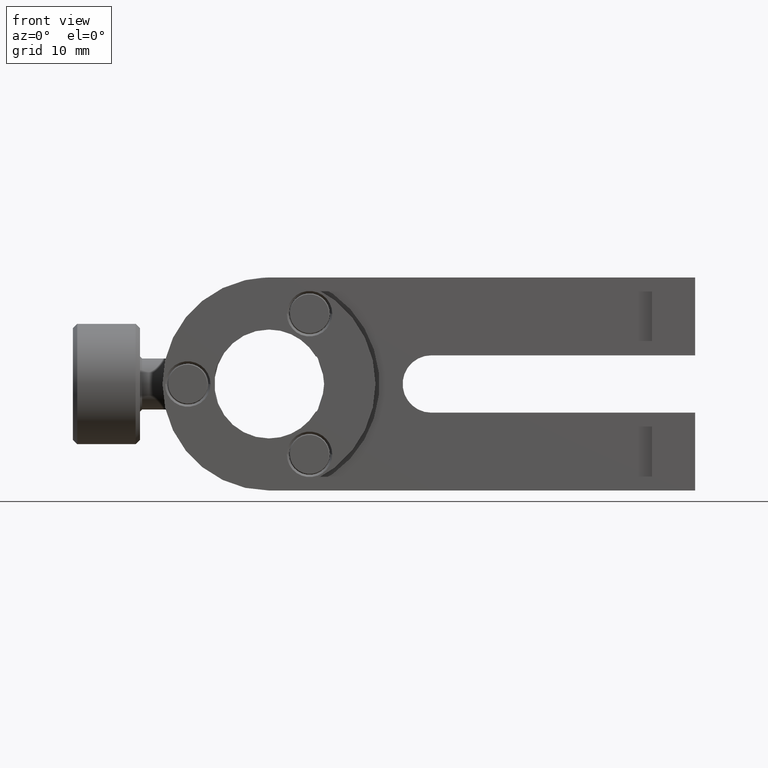
[diagram: clean part render]
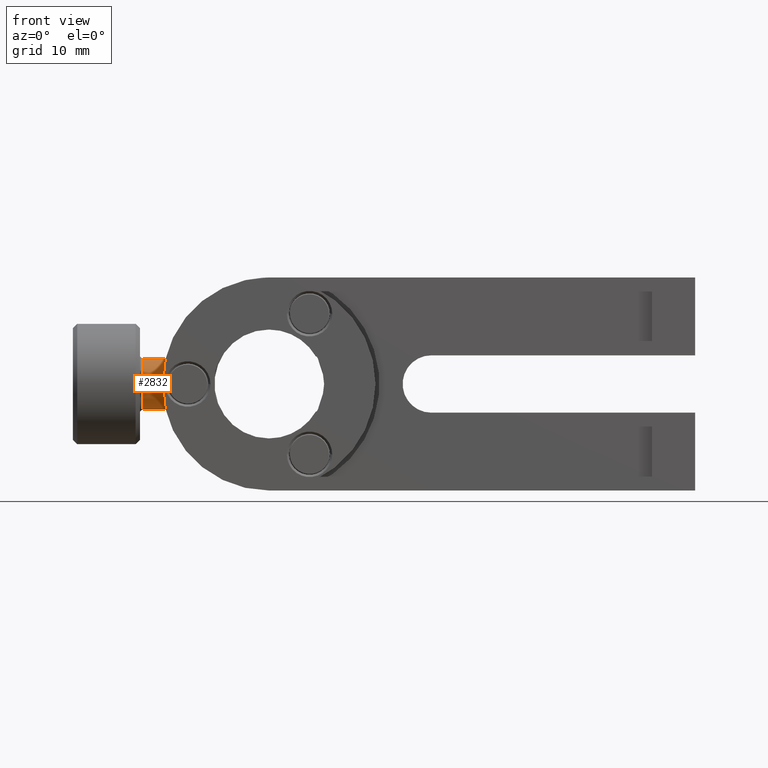
[diagram: same view with one face highlighted and labeled with its STEP entity id]
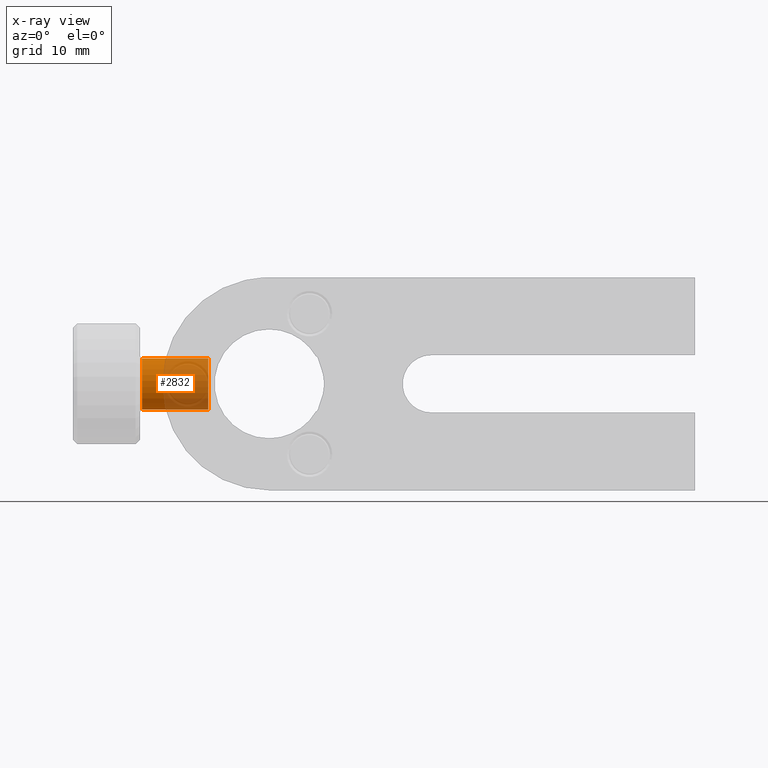
[diagram: x-ray of the same camera — body ghosted, the highlighted face saturated]
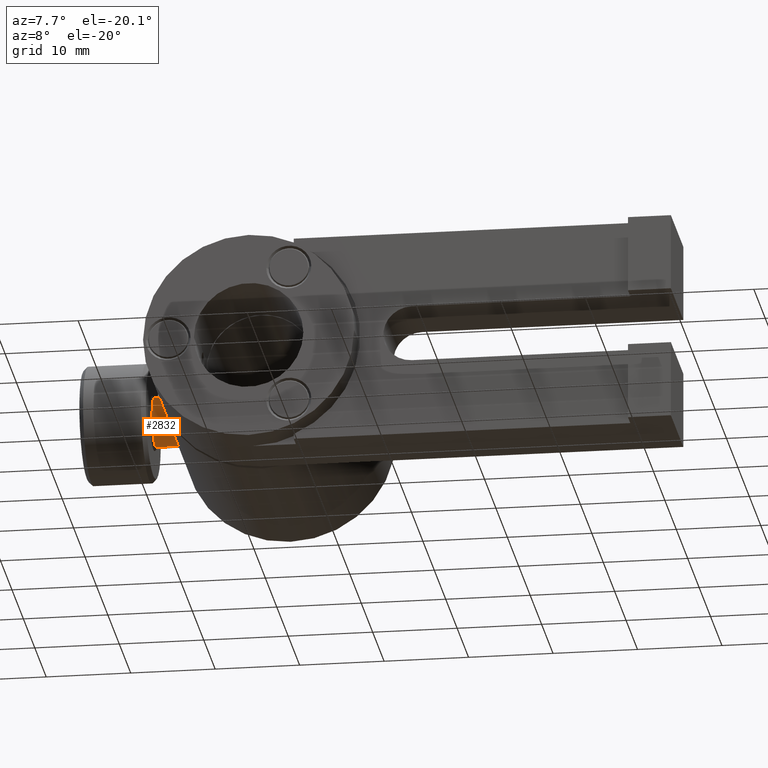
[diagram: same view with one face highlighted and labeled with its STEP entity id]
A machine part, front view. The second image highlights one B-rep face of the part: STEP entity #2832.
The next image is the same camera in x-ray: the body ghosted, the highlighted face saturated — about 67% of this face is hidden behind the body in this view.
A second angle (auxiliary view) of the same face is appended — the face is thin or edge-on in the first view.
In plain terms, the highlighted cylindrical surface (edge-blend (fillet) strip) has radius 2.9952 mm, axis along (-1, -0, -0).
Its self-contained STEP definition (entity closure, byte-faithful):
#126 = VECTOR ( 'NONE', #141, 1000.000000000000000 ) ;
#141 = DIRECTION ( 'NONE',  ( -1.000000000000000000, -0.0000000000000000000, -0.0000000000000000000 ) ) ;
#147 = AXIS2_PLACEMENT_3D ( 'NONE', #532, #545, #1911 ) ;
#244 = EDGE_CURVE ( 'NONE', #1350, #3098, #892, .T. ) ;
#372 = CARTESIAN_POINT ( 'NONE',  ( -10.74862634088826000, 23.30447020906446900, 2.995201897910377400 ) ) ;
#532 = CARTESIAN_POINT ( 'NONE',  ( -10.74862634088826000, 23.30447020906446900, 0.0000000000000000000 ) ) ;
#545 = DIRECTION ( 'NONE',  ( -1.000000000000000000, -0.0000000000000000000, -0.0000000000000000000 ) ) ;
#578 = ORIENTED_EDGE ( 'NONE', *, *, #1901, .F. ) ;
#607 = DIRECTION ( 'NONE',  ( -1.000000000000000000, -0.0000000000000000000, -0.0000000000000000000 ) ) ;
#677 = CARTESIAN_POINT ( 'NONE',  ( -22.21612422020027800, 23.30447020906446900, 2.995201897910377400 ) ) ;
#892 = CIRCLE ( 'NONE', #2960, 2.995201897910377400 ) ;
#938 = VERTEX_POINT ( 'NONE', #3562 ) ;
#1116 = DIRECTION ( 'NONE',  ( -1.000000000000000000, -0.0000000000000000000, -0.0000000000000000000 ) ) ;
#1124 = CARTESIAN_POINT ( 'NONE',  ( -22.21612422020027800, 23.30447020906446900, -2.995201897910377400 ) ) ;
#1224 = AXIS2_PLACEMENT_3D ( 'NONE', #3110, #1116, #2241 ) ;
#1350 = VERTEX_POINT ( 'NONE', #3418 ) ;
#1754 = ORIENTED_EDGE ( 'NONE', *, *, #244, .T. ) ;
#1820 = CARTESIAN_POINT ( 'NONE',  ( -3.001626340888241500, 23.30447020906446900, 0.0000000000000000000 ) ) ;
#1821 = ORIENTED_EDGE ( 'NONE', *, *, #3417, .T. ) ;
#1842 = FACE_OUTER_BOUND ( 'NONE', #3074, .T. ) ;
#1901 = EDGE_CURVE ( 'NONE', #938, #3503, #3195, .T. ) ;
#1911 = DIRECTION ( 'NONE',  ( 0.0000000000000000000, 0.0000000000000000000, 1.000000000000000000 ) ) ;
#1943 = LINE ( 'NONE', #1124, #3454 ) ;
#2114 = DIRECTION ( 'NONE',  ( -1.000000000000000000, -0.0000000000000000000, -0.0000000000000000000 ) ) ;
#2241 = DIRECTION ( 'NONE',  ( 0.0000000000000000000, 0.0000000000000000000, 1.000000000000000000 ) ) ;
#2378 = LINE ( 'NONE', #677, #126 ) ;
#2408 = DIRECTION ( 'NONE',  ( 0.0000000000000000000, 0.0000000000000000000, 1.000000000000000000 ) ) ;
#2432 = EDGE_CURVE ( 'NONE', #1350, #938, #1943, .T. ) ;
#2832 = ADVANCED_FACE ( 'NONE', ( #1842 ), #3589, .T. ) ;
#2960 = AXIS2_PLACEMENT_3D ( 'NONE', #1820, #2114, #2408 ) ;
#3074 = EDGE_LOOP ( 'NONE', ( #3246, #1754, #1821, #578 ) ) ;
#3098 = VERTEX_POINT ( 'NONE', #3169 ) ;
#3110 = CARTESIAN_POINT ( 'NONE',  ( -22.21612422020027800, 23.30447020906446900, 0.0000000000000000000 ) ) ;
#3169 = CARTESIAN_POINT ( 'NONE',  ( -3.001626340888241500, 23.30447020906446900, 2.995201897910377400 ) ) ;
#3195 = CIRCLE ( 'NONE', #147, 2.995201897910377400 ) ;
#3246 = ORIENTED_EDGE ( 'NONE', *, *, #2432, .F. ) ;
#3417 = EDGE_CURVE ( 'NONE', #3098, #3503, #2378, .T. ) ;
#3418 = CARTESIAN_POINT ( 'NONE',  ( -3.001626340888241500, 23.30447020906446900, -2.995201897910377400 ) ) ;
#3454 = VECTOR ( 'NONE', #607, 1000.000000000000000 ) ;
#3503 = VERTEX_POINT ( 'NONE', #372 ) ;
#3562 = CARTESIAN_POINT ( 'NONE',  ( -10.74862634088826000, 23.30447020906446900, -2.995201897910377400 ) ) ;
#3589 = CYLINDRICAL_SURFACE ( 'NONE', #1224, 2.995201897910377400 ) ;